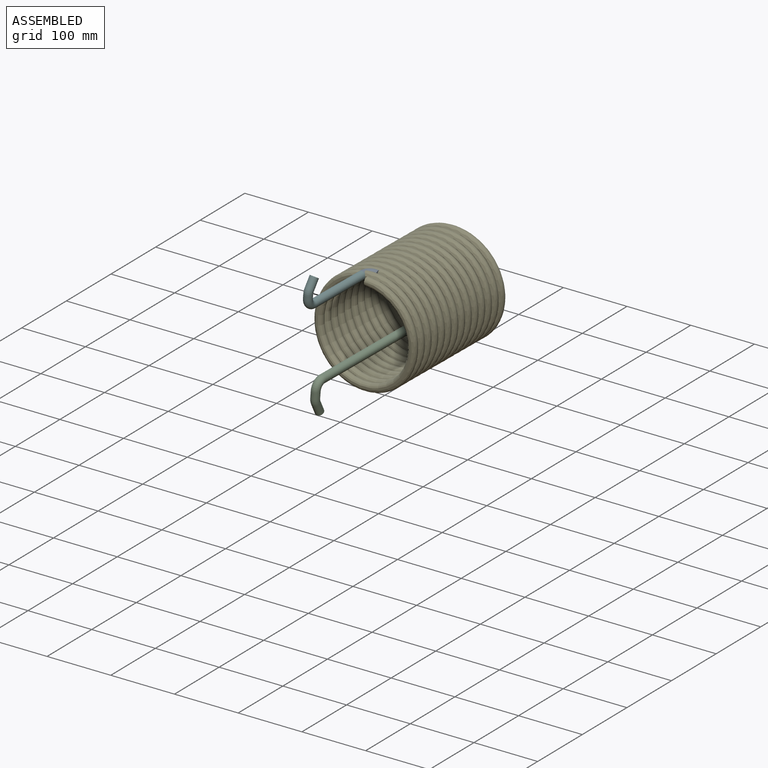
[diagram: assembled view]
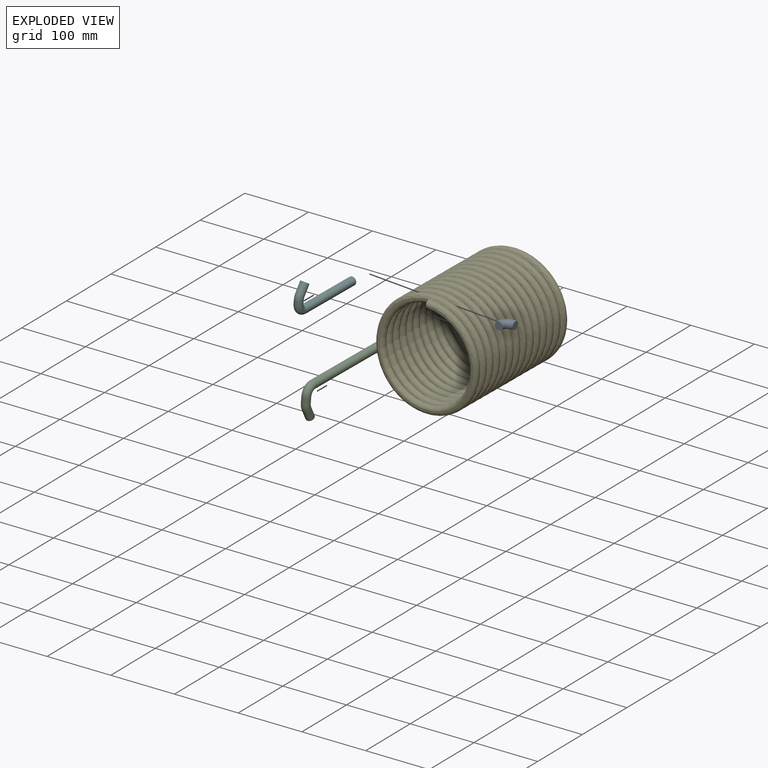
[diagram: exploded view]
GUIDED TOUR — MATED ASSEMBLY (Onshape document ae2d80fdc6782798117f435f, AutoMate assembly ae2d80fdc6782798117f435f_162fc176c765ea784f817788_9c8a822c6dcd213e4bc459da_default)

This assembly has 6 components, labeled P0..P5 below (a component is one placed occurrence of a part; the same part can appear more than once), held together by 9 mates. A mate is a constraint between two components; its type names the relative motion it leaves free:
  PLANAR — leaves sliding in the plane through the listed point (normal = the listed direction) and rotation about that normal free.
Axis/direction vectors are unit vectors and 'through' points are millimeter coordinates, both in the assembly's world frame.

MATES
  1. PLANAR "Planar 9": P1 <-> P3, direction (-0.066, -0.015, -0.998) through (-111.64, -0.25, -119.91) mm
  2. PLANAR "Planar 3": P1 <-> P3, direction (-0.066, -0.015, -0.998) through (-111.64, -0.25, -119.91) mm
  3. PLANAR "Planar 7": P1 <-> P2, direction (0.001, -1.000, 0.015) through (-110.60, -14.97, -104.33) mm
  4. PLANAR "Planar 8": P3 <-> P4, direction (0.998, 0.000, -0.066) through (-97.74, -0.48, -136.26) mm
  5. PLANAR "Planar 1": P4 <-> P3, direction (-0.998, 0.000, 0.066) through (-97.74, -0.48, -136.26) mm
  6. PLANAR "Planar 5": P5 <-> P0, direction (-0.001, 1.000, -0.015) through (-102.41, -191.37, 18.89) mm
  7. PLANAR "Planar 4": P2 <-> P1, direction (-0.001, 1.000, -0.015) through (-110.60, -14.97, -104.33) mm
  8. PLANAR "Planar 6": P4 <-> P0, direction (-0.998, 0.000, 0.066) through (-87.43, -201.37, 18.83) mm
  9. PLANAR "Planar 2": P2 <-> P1, direction (-0.001, 1.000, -0.015) through (-110.60, -14.97, -104.33) mm

ASSEMBLY ORDER
  1. P4 — the base component [order verified]
  2. P0 [order verified]
  3. P2 [order verified]
  4. P1 [order verified]
  5. P3 [order verified]
  6. P5 [order verified]
(P0 verified with a relaxed clearance tolerance: the source model stores slight part interference there.)
Order-tag legend:
  [order verified] — this step's position reverses a verified removal order: the component was checked to insert without passing through the ones already placed.

Of the 6 components, 5 carry the full construction recipe — the FeatureScript program that regenerates the part's solid from scratch; the rest are supplied as boundary geometry only.
Each toured component is shown spotlighted twice — in the assembled view, then in the exploded view, where a leader line traces a displaced component back to its assembled socket (saturated green if recipe-attached, orange if geometry-only; every other component desaturated gray) — followed by its recipe or geometry summary and the mates that hold it.
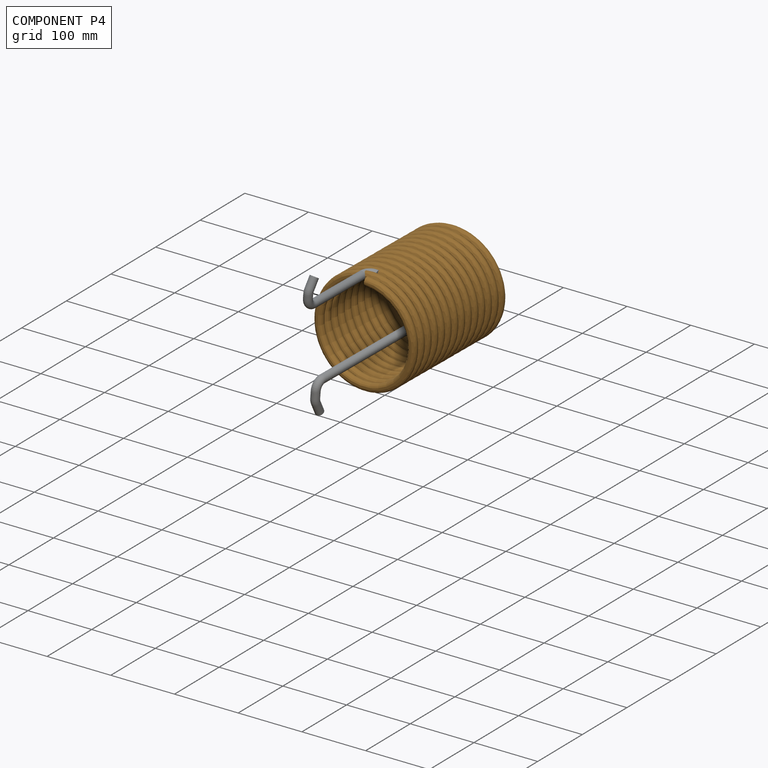
[diagram: component P4 — assembled]
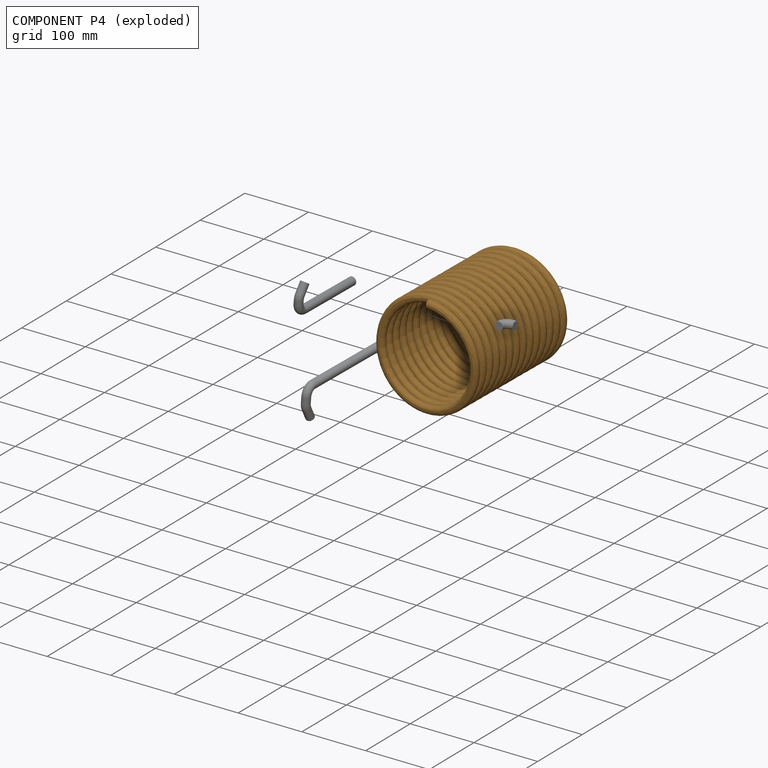
[diagram: component P4 — exploded]
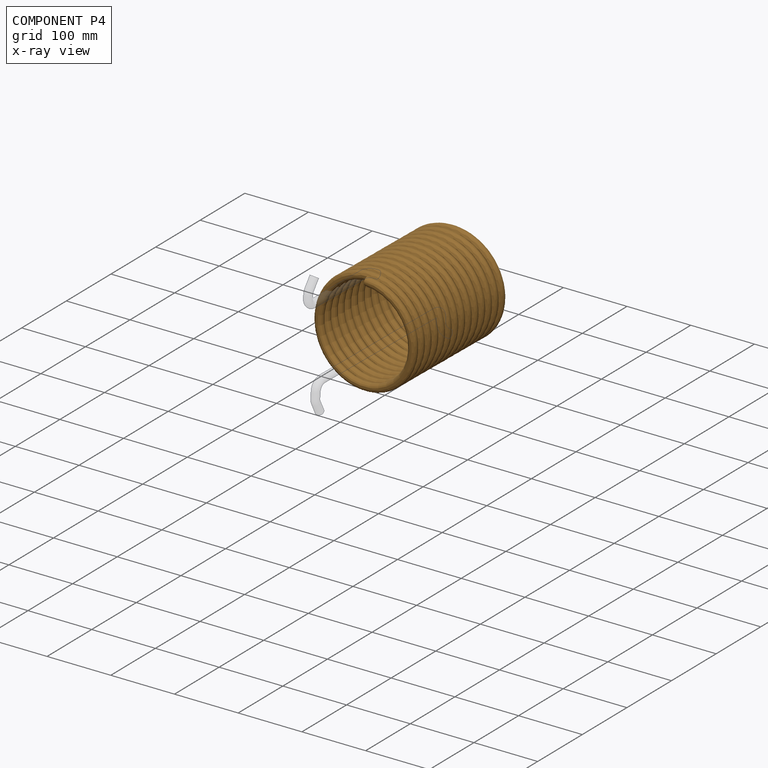
[diagram: component P4 — x-ray view]
COMPONENT P4 — geometry summary (no construction recipe available for this part):
  bounding box: 217.8 x 177.8 x 177.8 mm
  B-rep topology: 1 solid, 3 faces, 6 edges
  volume: 818806 mm^3 (12% of its bounding box)
  symmetry: 2-fold rotationally symmetric about the x axis
Held by: PLANAR mate "Planar 8" to P3; PLANAR mate "Planar 1" to P3; PLANAR mate "Planar 6" to P0.
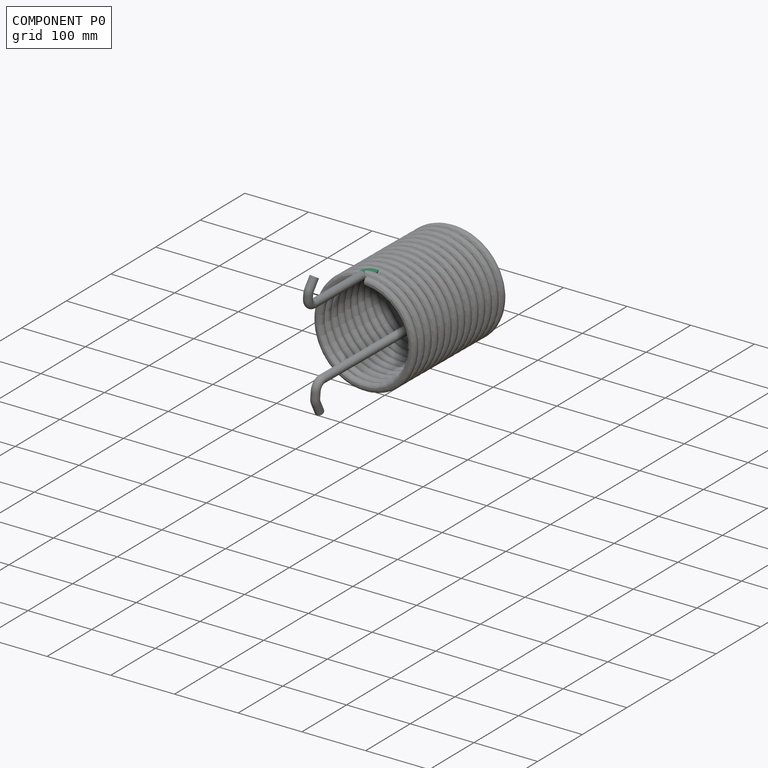
[diagram: component P0 — assembled]
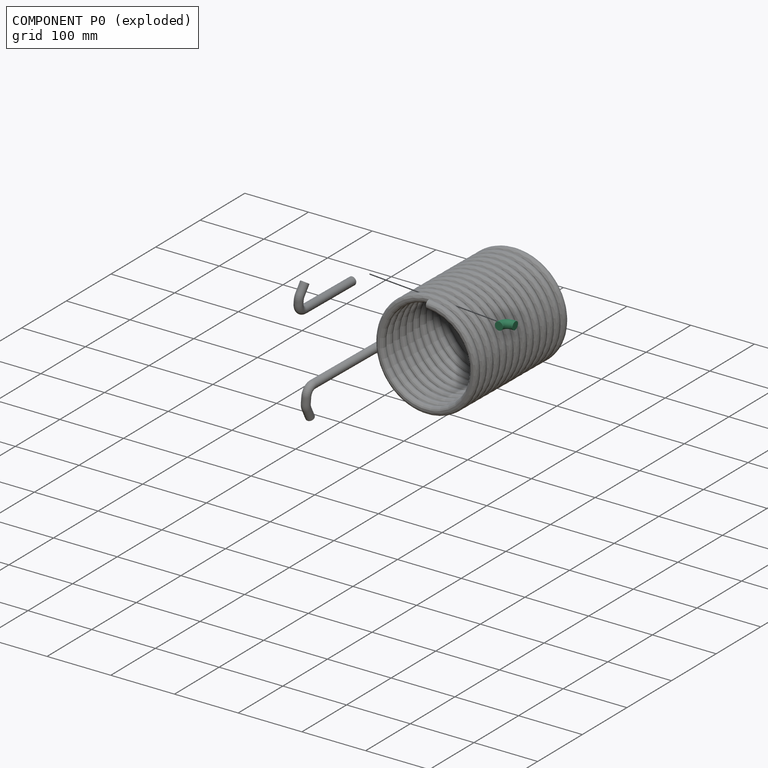
[diagram: component P0 — exploded]
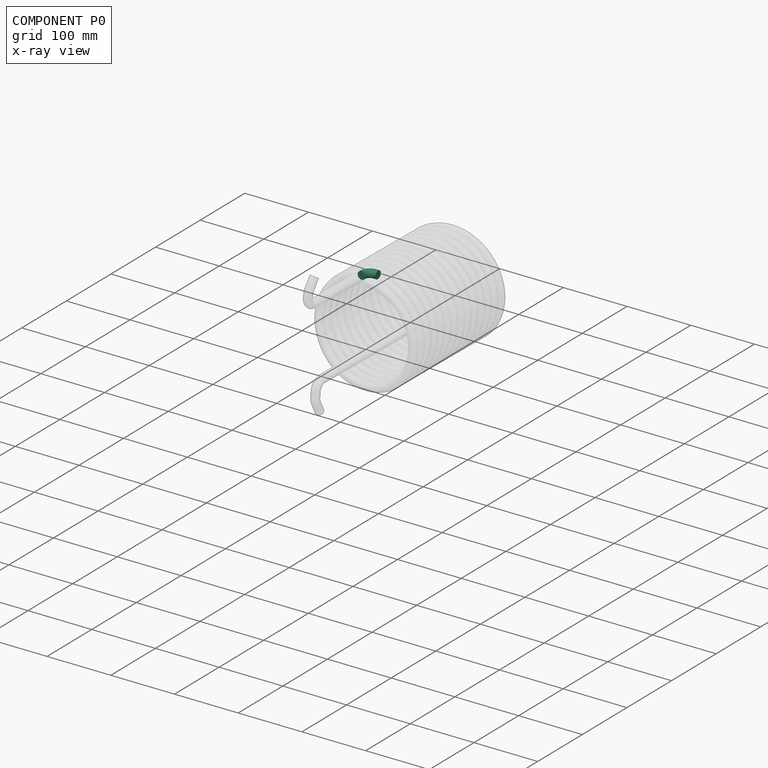
[diagram: component P0 — x-ray view]
COMPONENT P0 — recipe-attached (CADFS 00106242, mesh-verified: the recipe's output STEP matches this component's geometry to below the mesh-comparison resolution (tessellation chordal tolerance ~0.0495 mm)).
Held by: PLANAR mate "Planar 5" to P5; PLANAR mate "Planar 6" to P4.
Construction recipe (FeatureScript — the CAD program that rebuilds this solid; sketch coordinates are in the units given by the * unit suffixes, e.g. mm):

FeatureScript 1511;
import(path : "onshape/std/geometry.fs", version : "1511.0");
import(path : "onshape/std/common.fs", version : "1511.0");
const mm = millimeter;
const VERTEX = EntityType.VERTEX;
const EDGE = EntityType.EDGE;
const FACE = EntityType.FACE;
const BODY = EntityType.BODY;
function v(x, y){return vector(x, y);}
function OD(order){return orderDisambiguation(order);}
function OSD(set){return originalSetDisambiguation(set);}
function TD(topology){return topologyDisambiguation(topology);}
function TDD(query){return trueDependencyDisambiguation(query);}
function sQuery(a, b, c) {return sketchEntityQuery(a, b, c);}

annotation { "Feature Type Name" : "Feature", "Feature Type Description" : "" }
export const myFeature = defineFeature(function(context is Context, id is Id, definition is map)
    precondition{}
    {
        {
            var Q0;
            Q0=qCreatedBy(makeId("Front.planeOp"),FACE);
            var sketch = newSketch(context, id + "F0", { "sketchPlane" : qUnion([Q0])});
            skLineSegment(sketch, "E0", {"start": v(0, 15.4) * mm, "end": v(0, 12.7) * mm});
            skLineSegment(sketch, "E1", {"start": v(-12.7, 0) * mm, "end": v(-14.95, 0) * mm});
            skPoint(sketch, "E2.visualSharp", {"position": v(0, 0) * mm});
            skArc(sketch, "E2.filletArc", {"start": v(-12.7, 0) * mm, "mid": v(-3.72, 3.72) * mm, "end": v(0, 12.7) * mm});
            skSolve(sketch);
        }
        {
            var Q0;
            Q0=sQuery(id+"F0.wireOp",VERTEX,"E0.start");
            var Q1;
            Q1=qCreatedBy(makeId("Top.planeOp"),FACE);
            cPlane(context, id + "F1", {"entities" : qUnion([Q0, Q1]), "cplaneType" : CPlaneType.PLANE_POINT, "offset" : 25.4 * mm, "width" : 152.4 * mm, "height" : 152.4 * mm});
        }
        {
            var Q0;
            Q0=qCreatedBy(id+"F1.planeOp",FACE);
            var sketch = newSketch(context, id + "F2", { "sketchPlane" : qUnion([Q0])});
            skCircle(sketch, "E3", {"center": v(0, 0) * mm, "radius": 6.35 * mm});
            skSolve(sketch);
        }
        {
            var Q0;
            Q0=makeQuery(id+"F2.imprint","IMPRINT",FACE,{"disambiguationData":[TD([[makeQuery(id+"F2.imprint","IMPRINT",EDGE,{"derivedFrom":sQuery(id+"F2.wireOp",EDGE,"E3")}),1.0]])]});
            var Q1;
            Q1=sQuery(id+"F0.wireOp",EDGE,"E2.filletArc");
            var Q2;
            Q2=sQuery(id+"F0.wireOp",EDGE,"E0");
            var Q3;
            Q3=sQuery(id+"F0.wireOp",EDGE,"E1");
            sweep(context, id + "F3", {"profiles" : qUnion([Q0]), "path" : qUnion([Q1, Q2, Q3])});
        }
    });
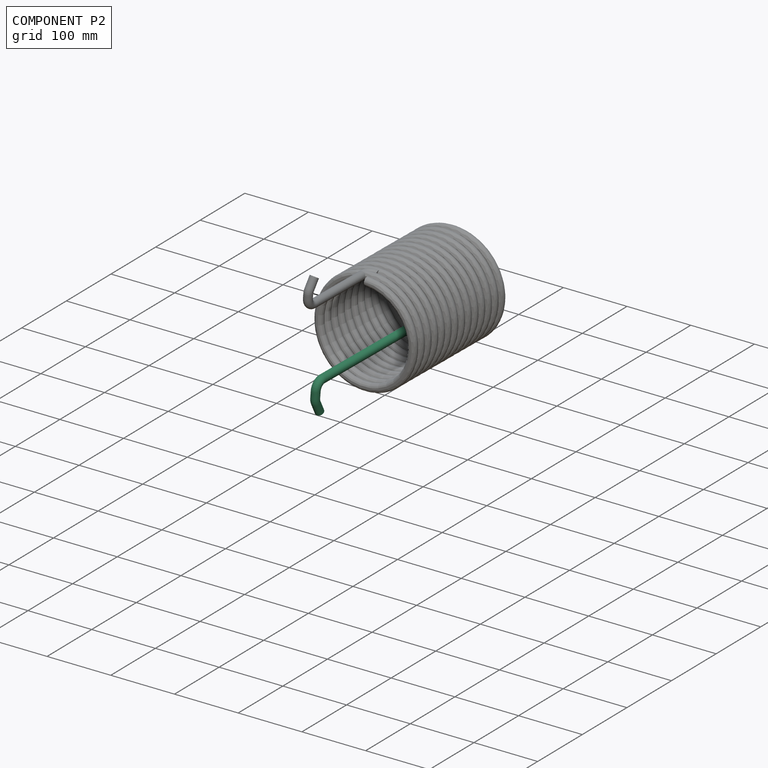
[diagram: component P2 — assembled]
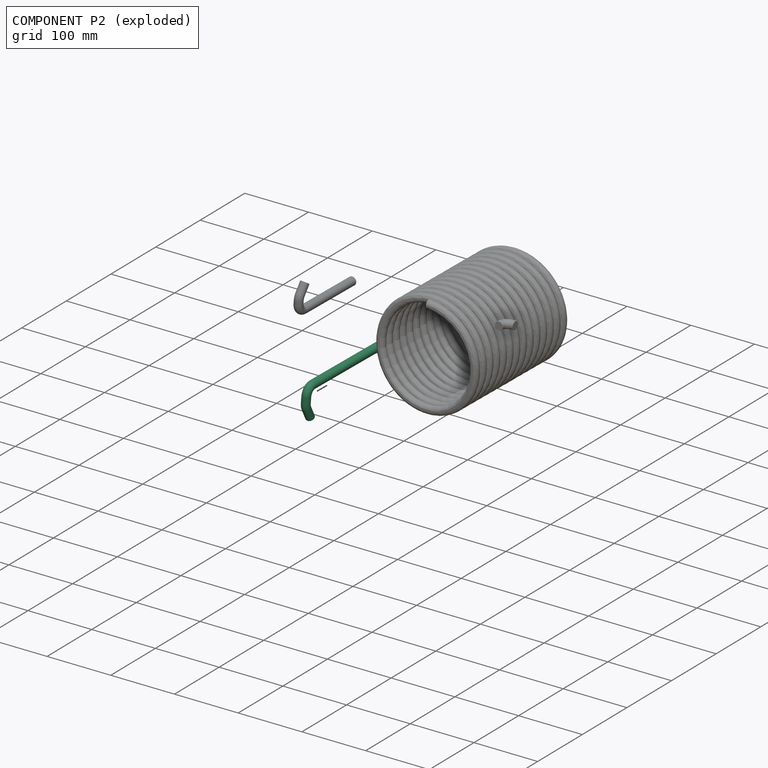
[diagram: component P2 — exploded]
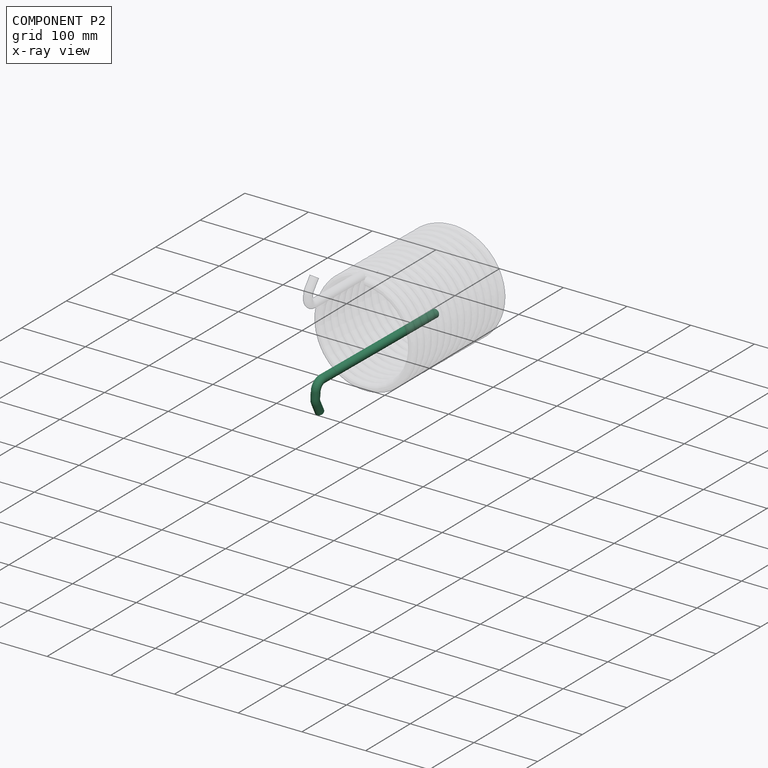
[diagram: component P2 — x-ray view]
COMPONENT P2 — recipe-attached (CADFS 00106240, mesh-verified: the recipe's output STEP matches this component's geometry to below the mesh-comparison resolution (tessellation chordal tolerance ~0.419 mm)).
Held by: PLANAR mate "Planar 7" to P1; PLANAR mate "Planar 4" to P1; PLANAR mate "Planar 2" to P1.
Construction recipe (FeatureScript — the CAD program that rebuilds this solid; sketch coordinates are in the units given by the * unit suffixes, e.g. mm):

FeatureScript 1511;
import(path : "onshape/std/geometry.fs", version : "1511.0");
import(path : "onshape/std/common.fs", version : "1511.0");
const mm = millimeter;
const VERTEX = EntityType.VERTEX;
const EDGE = EntityType.EDGE;
const FACE = EntityType.FACE;
const BODY = EntityType.BODY;
function v(x, y){return vector(x, y);}
function OD(order){return orderDisambiguation(order);}
function OSD(set){return originalSetDisambiguation(set);}
function TD(topology){return topologyDisambiguation(topology);}
function TDD(query){return trueDependencyDisambiguation(query);}
function sQuery(a, b, c) {return sketchEntityQuery(a, b, c);}

annotation { "Feature Type Name" : "Feature", "Feature Type Description" : "" }
export const myFeature = defineFeature(function(context is Context, id is Id, definition is map)
    precondition{}
    {
        {
            var Q0;
            Q0=qCreatedBy(makeId("Front.planeOp"),FACE);
            var sketch = newSketch(context, id + "F0", { "sketchPlane" : qUnion([Q0])});
            skLineSegment(sketch, "E0", {"start": v(0, 202.63) * mm, "end": v(0, -51.37) * mm});
            skLineSegment(sketch, "E1", {"start": v(-12.7, -64.07) * mm, "end": v(-23, -64.07) * mm});
            skLineSegment(sketch, "E2", {"start": v(-29.55, -62.25) * mm, "end": v(-46.83, -51.85) * mm});
            skPoint(sketch, "E3.visualSharp", {"position": v(0, -64.07) * mm});
            skArc(sketch, "E3.filletArc", {"start": v(-12.7, -64.07) * mm, "mid": v(-3.72, -60.35) * mm, "end": v(0, -51.37) * mm});
            skPoint(sketch, "E4.visualSharp", {"position": v(-26.52, -64.07) * mm});
            skArc(sketch, "E4.filletArc", {"start": v(-29.55, -62.25) * mm, "mid": v(-26.4, -63.6) * mm, "end": v(-23, -64.07) * mm});
            skSolve(sketch);
        }
        {
            var Q0;
            Q0=sQuery(id+"F0.wireOp",VERTEX,"E0.start");
            var Q1;
            Q1=qCreatedBy(makeId("Top.planeOp"),FACE);
            cPlane(context, id + "F1", {"entities" : qUnion([Q0, Q1]), "cplaneType" : CPlaneType.PLANE_POINT, "offset" : 25.4 * mm, "width" : 152.4 * mm, "height" : 152.4 * mm});
        }
        {
            var Q0;
            Q0=qCreatedBy(id+"F1.planeOp",FACE);
            var sketch = newSketch(context, id + "F2", { "sketchPlane" : qUnion([Q0])});
            skCircle(sketch, "E5", {"center": v(0, 0) * mm, "radius": 6.35 * mm});
            skSolve(sketch);
        }
        {
            var Q0;
            Q0=makeQuery(id+"F2.imprint","IMPRINT",FACE,{"disambiguationData":[TD([[makeQuery(id+"F2.imprint","IMPRINT",EDGE,{"derivedFrom":sQuery(id+"F2.wireOp",EDGE,"E5")}),1.0]])]});
            var Q1;
            Q1=sQuery(id+"F0.wireOp",EDGE,"E0");
            var Q2;
            Q2=sQuery(id+"F0.wireOp",EDGE,"E3.filletArc");
            var Q3;
            Q3=sQuery(id+"F0.wireOp",EDGE,"E1");
            var Q4;
            Q4=sQuery(id+"F0.wireOp",EDGE,"E4.filletArc");
            var Q5;
            Q5=sQuery(id+"F0.wireOp",EDGE,"E2");
            sweep(context, id + "F3", {"profiles" : qUnion([Q0]), "path" : qUnion([Q1, Q2, Q3, Q4, Q5])});
        }
    });
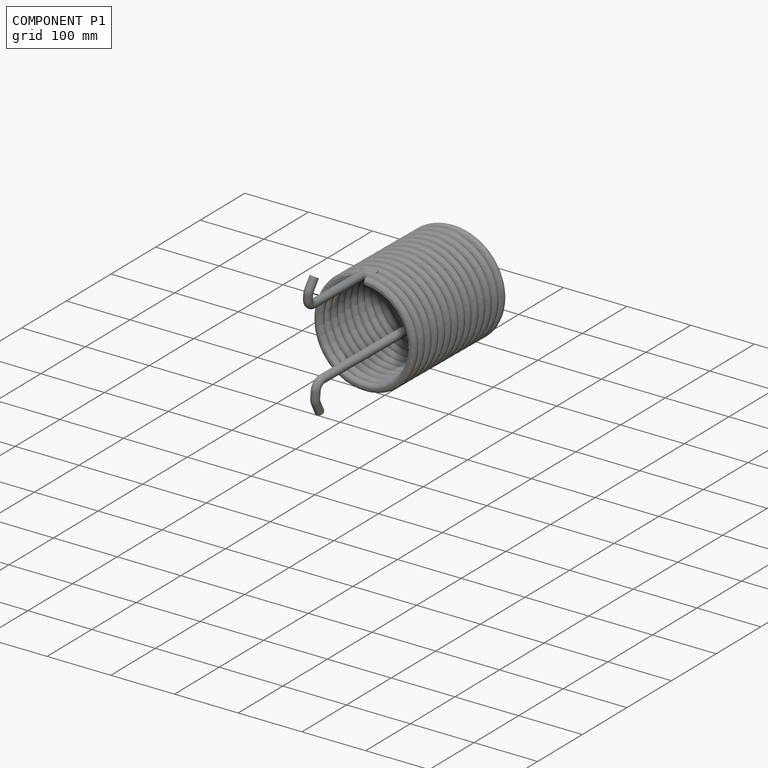
[diagram: component P1 — assembled]
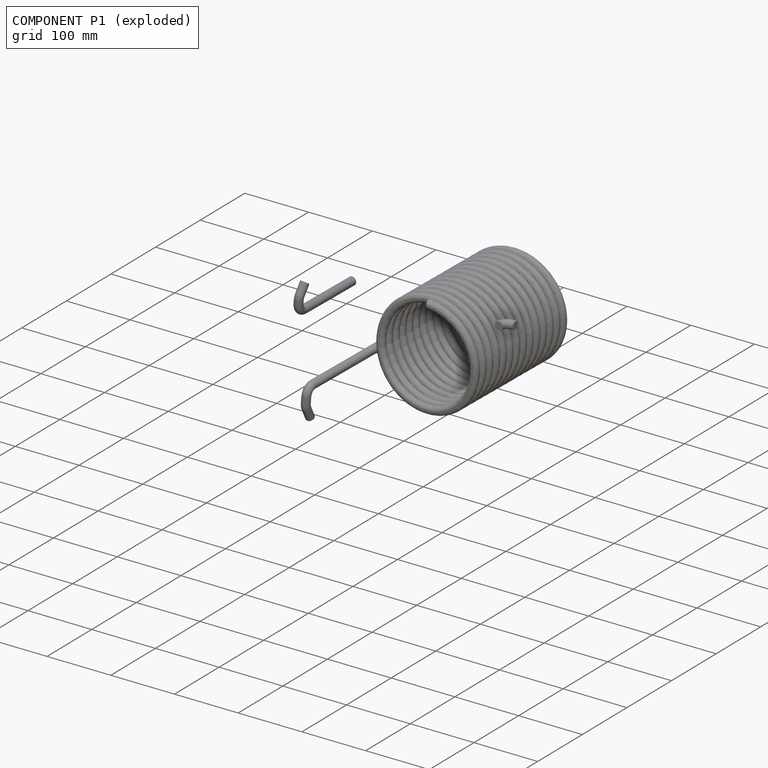
[diagram: component P1 — exploded]
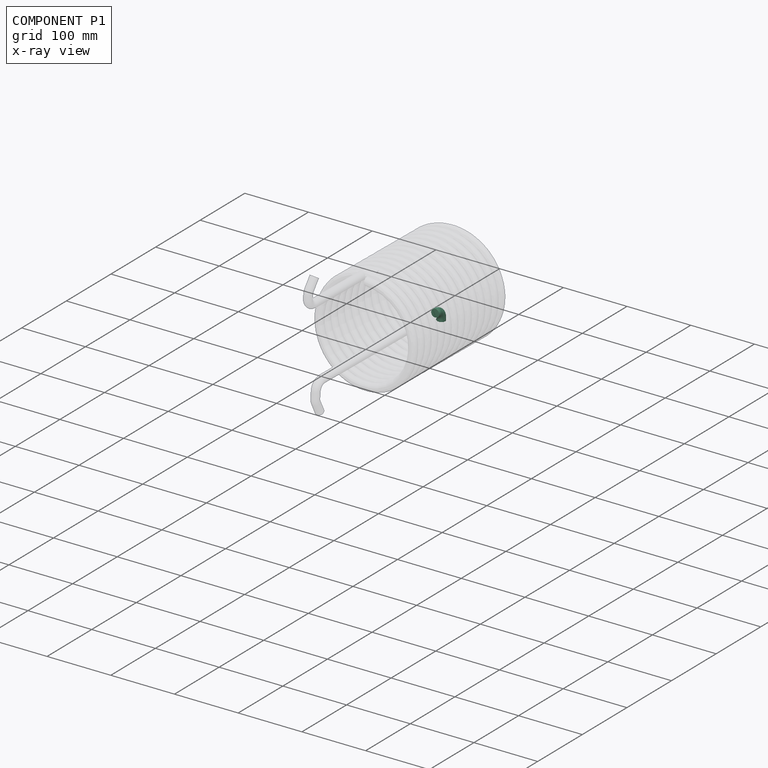
[diagram: component P1 — x-ray view]
COMPONENT P1 — same part as P0 (CADFS 00106242); its construction recipe is shown at P0.
Held by: PLANAR mate "Planar 9" to P3; PLANAR mate "Planar 3" to P3; PLANAR mate "Planar 7" to P2; PLANAR mate "Planar 4" to P2; PLANAR mate "Planar 2" to P2.
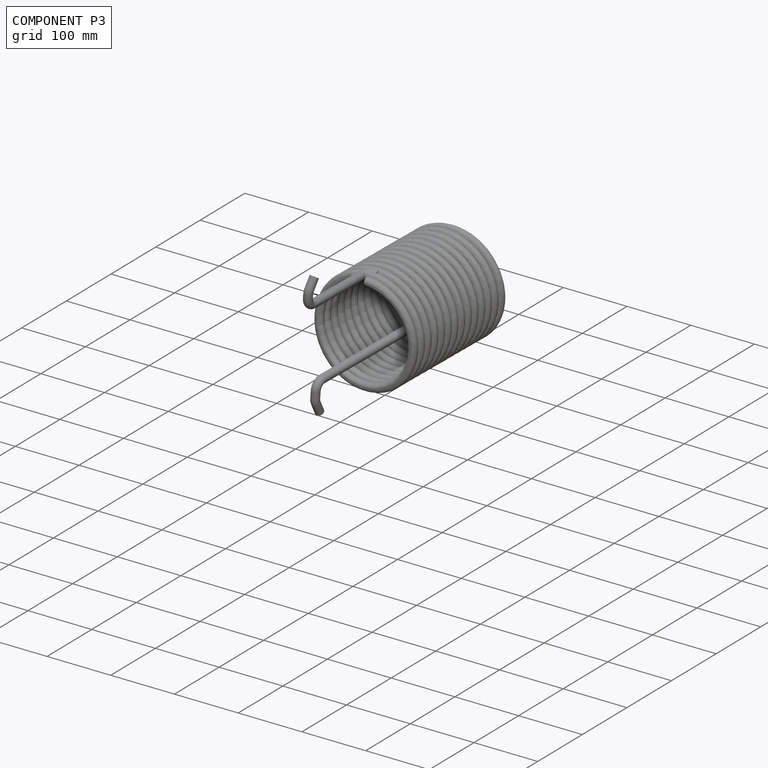
[diagram: component P3 — assembled]
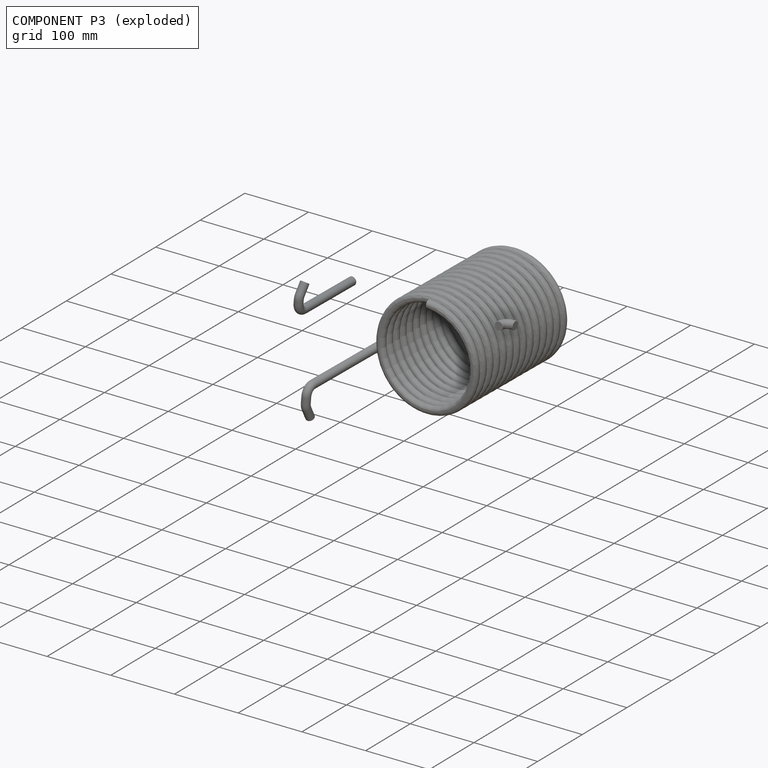
[diagram: component P3 — exploded]
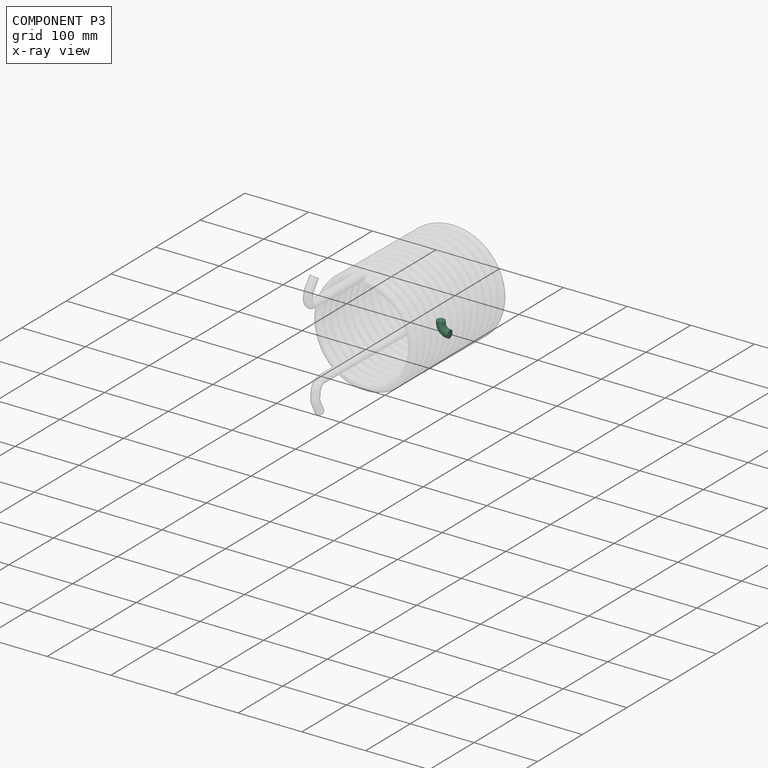
[diagram: component P3 — x-ray view]
COMPONENT P3 — same part as P0 (CADFS 00106242); its construction recipe is shown at P0.
Held by: PLANAR mate "Planar 9" to P1; PLANAR mate "Planar 3" to P1; PLANAR mate "Planar 8" to P4; PLANAR mate "Planar 1" to P4.
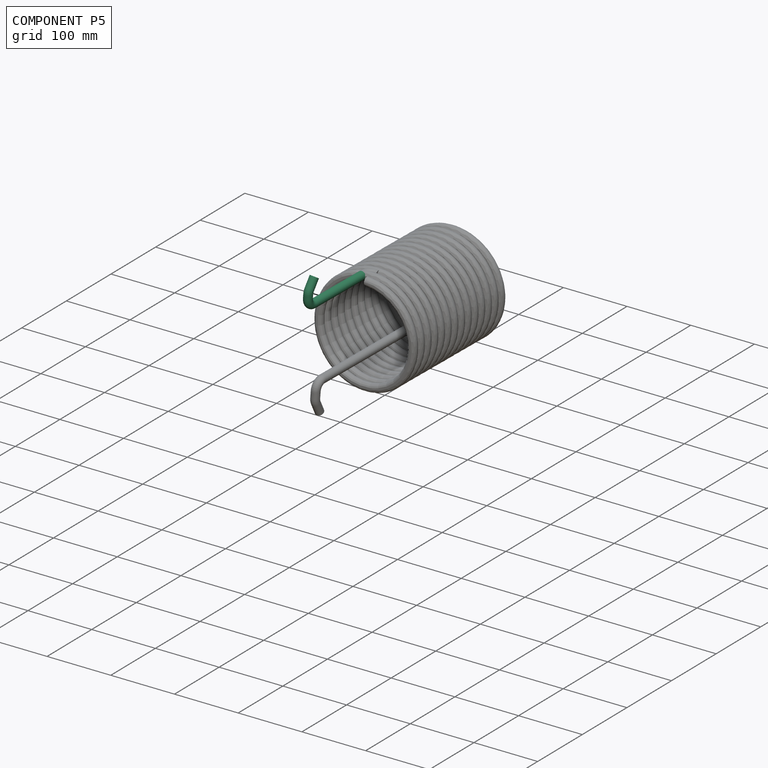
[diagram: component P5 — assembled]
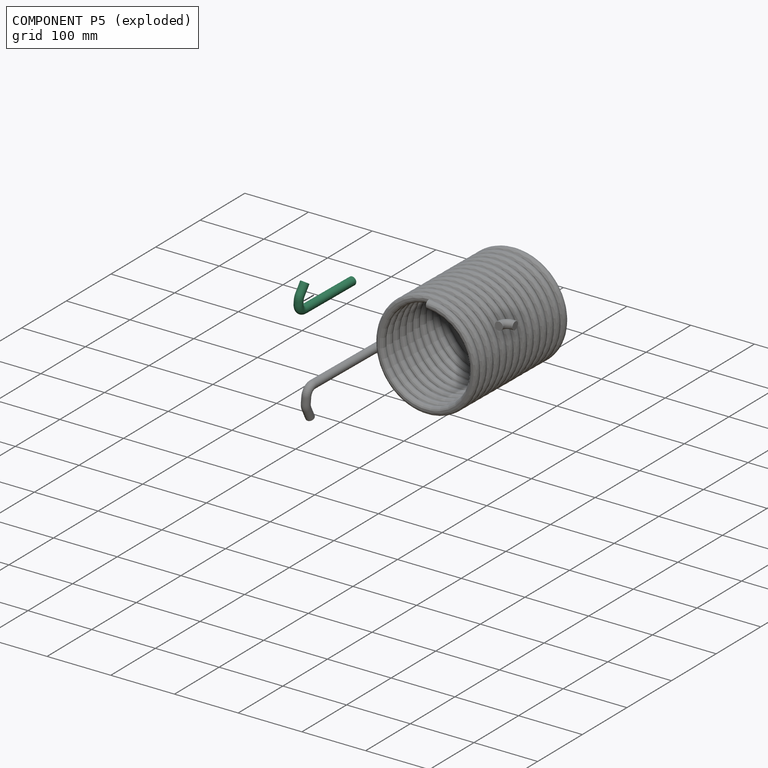
[diagram: component P5 — exploded]
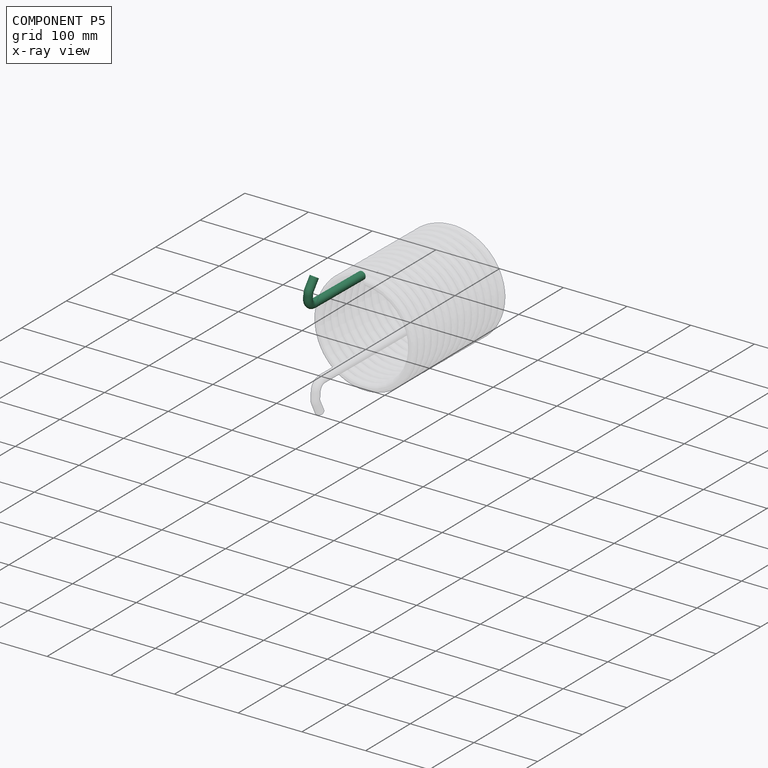
[diagram: component P5 — x-ray view]
COMPONENT P5 — recipe-attached (CADFS 00106241, mesh-verified: the recipe's output STEP matches this component's geometry to below the mesh-comparison resolution (tessellation chordal tolerance ~0.207 mm)).
Held by: PLANAR mate "Planar 5" to P0.
Construction recipe (FeatureScript — the CAD program that rebuilds this solid; sketch coordinates are in the units given by the * unit suffixes, e.g. mm):

FeatureScript 1511;
import(path : "onshape/std/geometry.fs", version : "1511.0");
import(path : "onshape/std/common.fs", version : "1511.0");
const mm = millimeter;
const VERTEX = EntityType.VERTEX;
const EDGE = EntityType.EDGE;
const FACE = EntityType.FACE;
const BODY = EntityType.BODY;
function v(x, y){return vector(x, y);}
function OD(order){return orderDisambiguation(order);}
function OSD(set){return originalSetDisambiguation(set);}
function TD(topology){return topologyDisambiguation(topology);}
function TDD(query){return trueDependencyDisambiguation(query);}
function sQuery(a, b, c) {return sketchEntityQuery(a, b, c);}

annotation { "Feature Type Name" : "Feature", "Feature Type Description" : "" }
export const myFeature = defineFeature(function(context is Context, id is Id, definition is map)
    precondition{}
    {
        {
            var Q0;
            Q0=qCreatedBy(makeId("Front.planeOp"),FACE);
            var sketch = newSketch(context, id + "F0", { "sketchPlane" : qUnion([Q0])});
            skLineSegment(sketch, "E0", {"start": v(0, 63.86) * mm, "end": v(0, -45.48) * mm});
            skLineSegment(sketch, "E1", {"start": v(-12.7, -58.18) * mm, "end": v(-18, -58.18) * mm});
            skLineSegment(sketch, "E2", {"start": v(-24.86, -56.17) * mm, "end": v(-39.4, -46.83) * mm});
            skPoint(sketch, "E3.visualSharp", {"position": v(0, -58.18) * mm});
            skArc(sketch, "E3.filletArc", {"start": v(-12.7, -58.18) * mm, "mid": v(-3.72, -54.46) * mm, "end": v(0, -45.48) * mm});
            skPoint(sketch, "E4.visualSharp", {"position": v(-21.72, -58.18) * mm});
            skArc(sketch, "E4.filletArc", {"start": v(-24.86, -56.17) * mm, "mid": v(-21.57, -57.67) * mm, "end": v(-18, -58.18) * mm});
            skSolve(sketch);
        }
        {
            var Q0;
            Q0=sQuery(id+"F0.wireOp",VERTEX,"E0.start");
            var Q1;
            Q1=qCreatedBy(makeId("Top.planeOp"),FACE);
            cPlane(context, id + "F1", {"entities" : qUnion([Q0, Q1]), "cplaneType" : CPlaneType.PLANE_POINT, "offset" : 25.4 * mm, "width" : 152.4 * mm, "height" : 152.4 * mm});
        }
        {
            var Q0;
            Q0=qCreatedBy(id+"F1.planeOp",FACE);
            var sketch = newSketch(context, id + "F2", { "sketchPlane" : qUnion([Q0])});
            skCircle(sketch, "E5", {"center": v(0, 0) * mm, "radius": 6.35 * mm});
            skSolve(sketch);
        }
        {
            var Q0;
            Q0 = qSketchRegion(id + "F2", true);
            var Q1;
            Q1 = qConstructionFilter(qBodyType(qCreatedBy(id + "F0" ,EDGE), BodyType.WIRE), ConstructionObject.NO);
            sweep(context, id + "F3", {"profiles" : qUnion([Q0]), "path" : qUnion([Q1])});
        }
    });
PROVENANCE & LICENSES
Assembly (occurrences, transforms, mates, per-part STEP geometry): AutoMate dataset, Zenodo record 7776208, CC0.
Construction recipes: CADFS (HuggingFace VladPyatov/CADFS, CC-BY-4.0, layered over the ABC dataset), FeatureScript reconstruction programs keyed by ABC model id.
Join: ABC meta listings map ABC model id -> Onshape documentId; within a shared document, parts are matched by geometric signature (bounding-box dims + volume at 0.1% relative tolerance, exact B-rep face/solid counts).
Verification: 5 of this assembly's 6 components carry a recipe attachment, and every attachment is mesh-verified: the CADFS STEP and the AutoMate member STEP were compared as meshes in their shared local frame (symmetric sampled-point-to-mesh distance); worst across the 5 attachments: below the mesh-comparison resolution (tessellation chordal tolerance ~0.419 mm) on a 279 mm part.
Renders: orthographic iso camera (az 35 / el 25); the floor grid conveys scale (grid pitch printed in each image; no ruler). In the exploded view each component is displaced by its stored offset vector: the offsets alone carry the explosion direction (mate normal/axis signs are not orientation cues and do not encode it), and separation distances are assigned per mate-chain, not proportionally to assembly-order depth.
